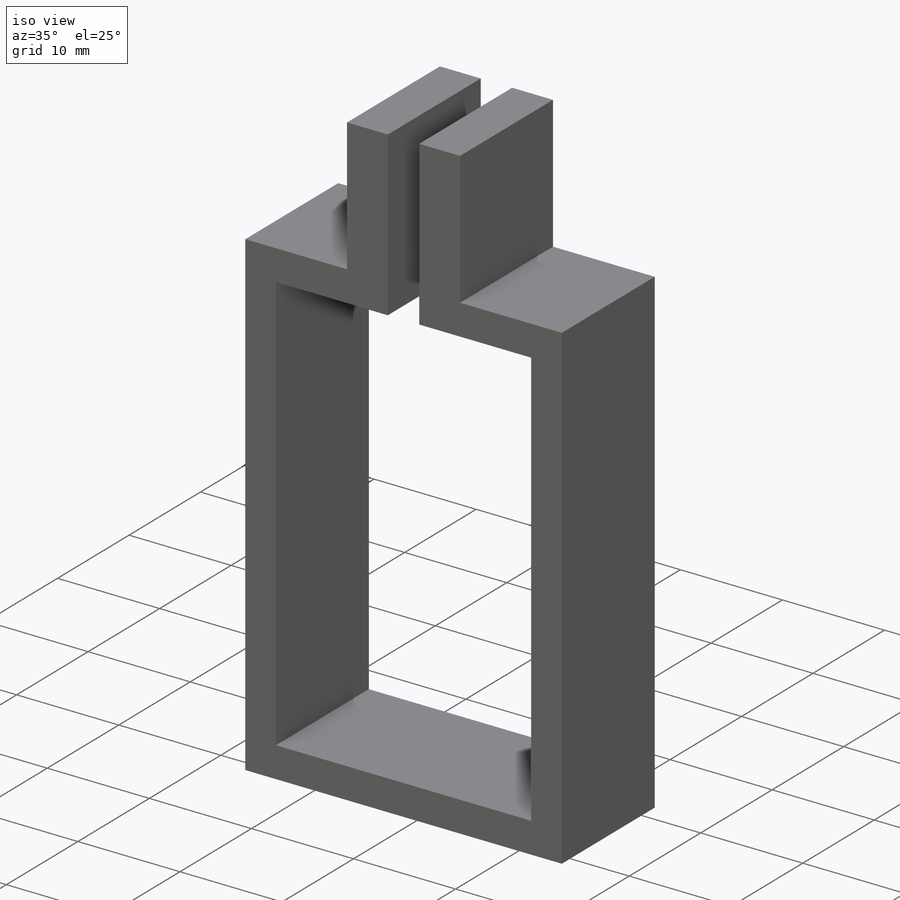
[diagram: iso view]
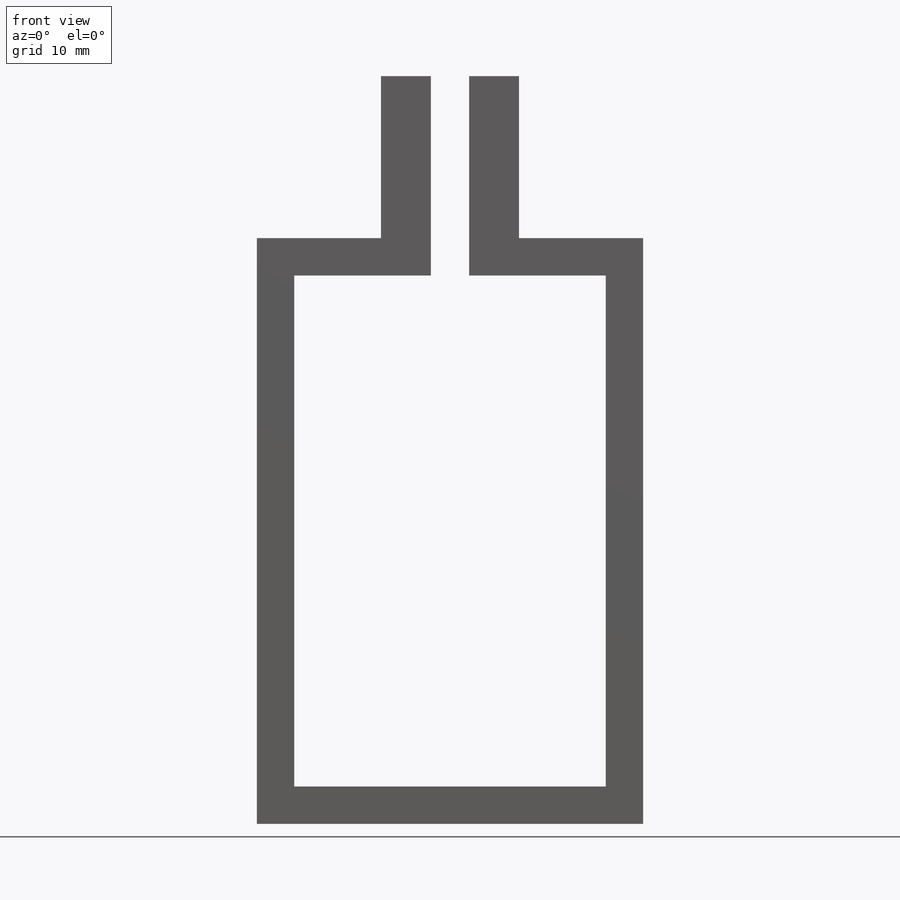
[diagram: front view]
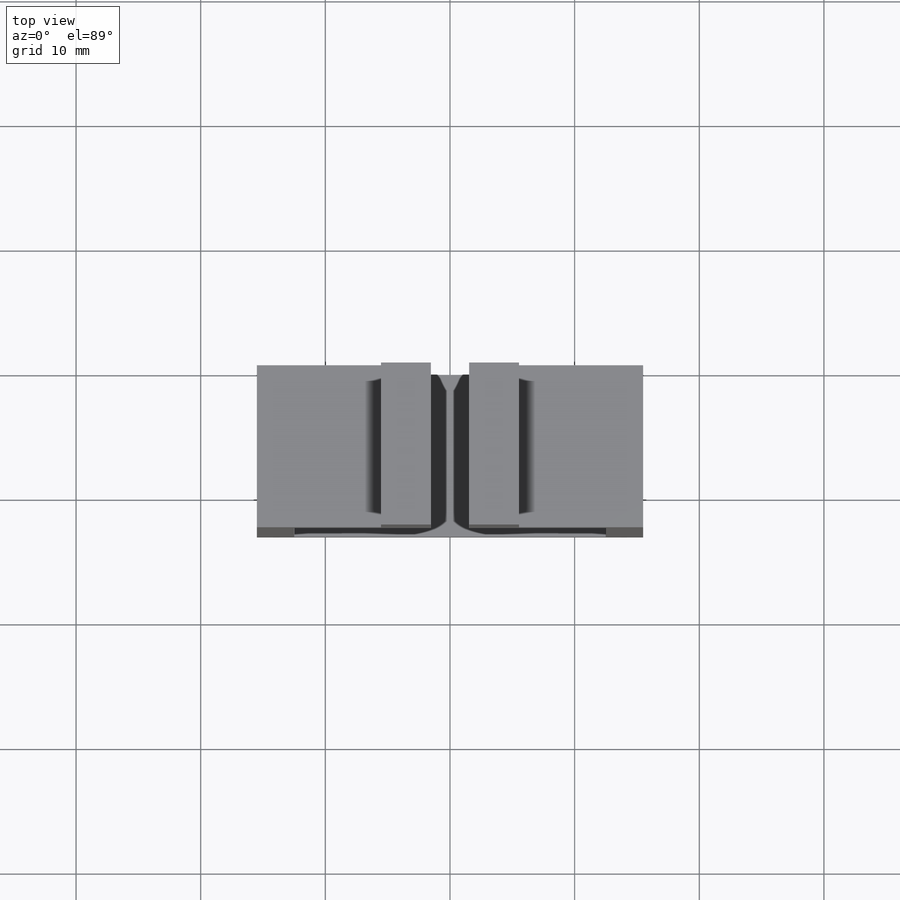
[diagram: top view]
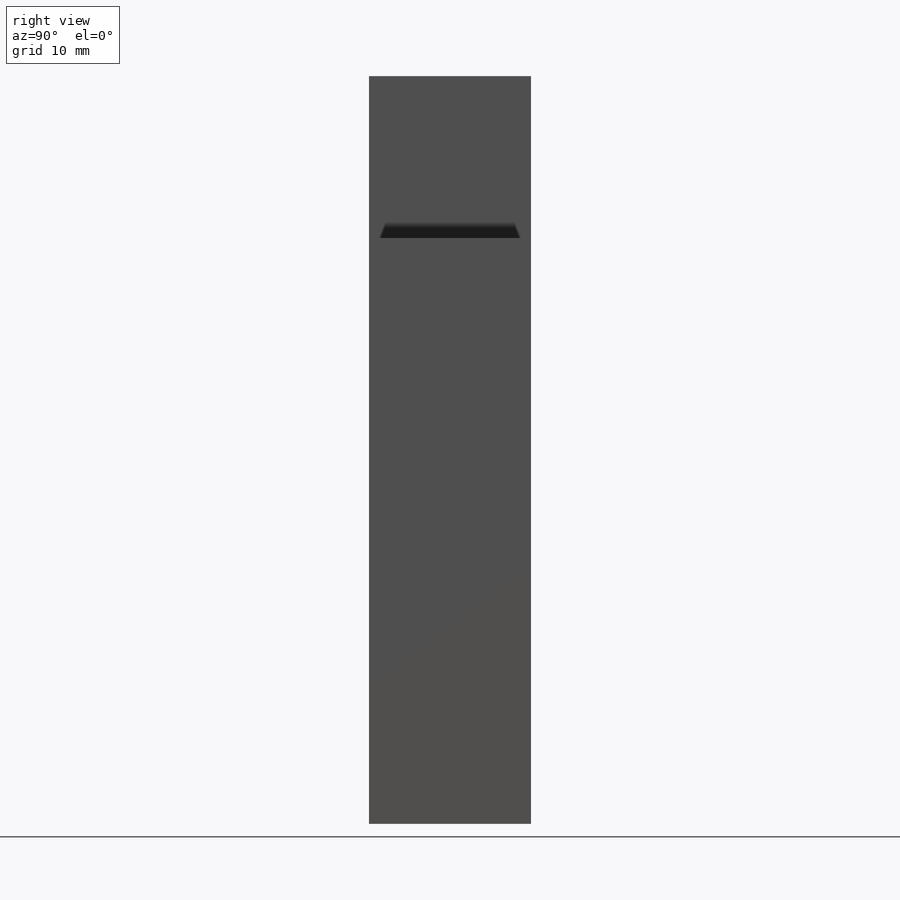
[diagram: right view]
SOLIDWORKS PART (.sldprt)
format: sldprt  version: not decoded by parser v0  size: 148,992 bytes
history: native  units: mm
features: sketch x4, plane x3, extrude x2, cut_extrude x2, material x1 (+10 scaffold rows collapsed)
feature tree (22):
  scaffold x10  (default folders/planes/origin — collapsed)
  material  "Material <sin especificar>"
  plane  "Alzado"
  plane  "Planta"
  plane  "Vista lateral"
  sketch  "Croquis1"  dims[D1=31.0mm D2=47.0mm]
  extrude  "Saliente-Extruir1"  Depth=13mm
  sketch  "Croquis2"  dims[D1=25.0mm D2=41.0mm]
  cut_extrude  "Cortar-Extruir1"  Depth=13mm
  sketch  "Croquis3"
  cut_extrude  "Cortar-Extruir2"  Depth=13mm
  sketch  "Croquis4"  dims[D1=4.0mm D2=4.0mm]
  extrude  "Saliente-Extruir2"  Depth=13mm
decode coverage: 7 of 8 modeling features carry decoded parameters
note: suppression state not decoded; provenance and decode notes live in map.json
